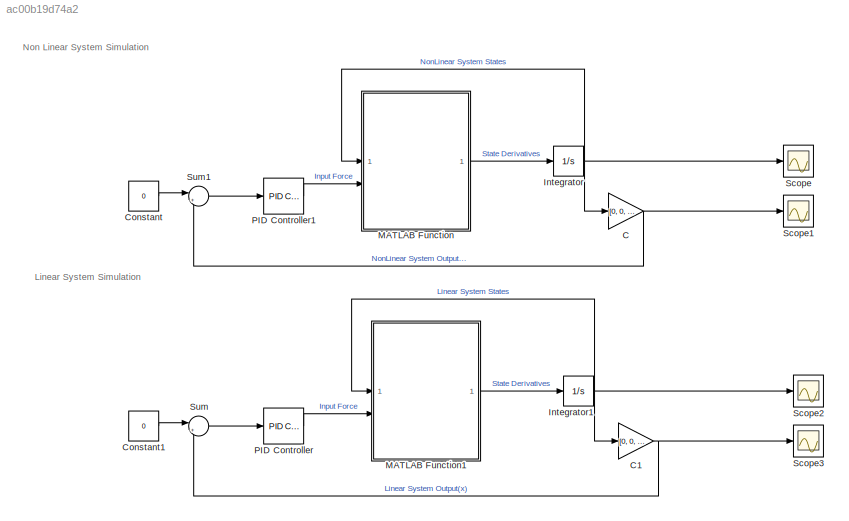
MODEL slx_ac00b19d74a2
KIND model
CONFIG AbsTol = auto
CONFIG EnableMultiTasking = off
CONFIG FixedStep = auto
CONFIG MaxStep = 0.001
CONFIG MinStep = auto
CONFIG RelTol = 1e-3
CONFIG SampleTimeConstraint = Unconstrained
CONFIG SolverName = VariableStepAuto
CONFIG StartTime = 0.0
CONFIG StopTime = 10
BLOCK [Gain] C
  Gain = [0, 0, 1, 0]
  Multiplication = Matrix(K*u)
BLOCK [Gain] C1
  Gain = [0, 0, 1, 0]
  Multiplication = Matrix(K*u)
BLOCK [Constant] Constant
  Value = 0
BLOCK [Constant] Constant1
  Value = 0
BLOCK [Integrator] Integrator
  InitialCondition = [0, 0, rand*0.1, 0]'
BLOCK [Integrator] Integrator1
  InitialCondition = [0, 0, rand*0.1, 0]'
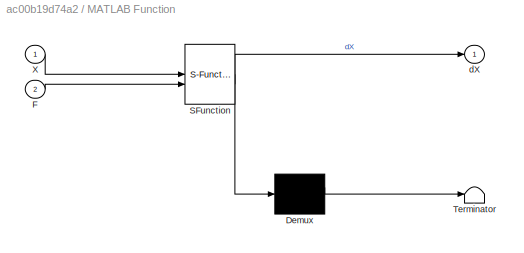
BLOCK [SubSystem] MATLAB Function
  ErrorFcn = Stateflow.Translate.translate
  PermitHierarchicalResolution = ExplicitOnly
  SFBlockType = MATLAB Function
  TreatAsAtomicUnit = on
BLOCK [Demux] MATLAB Function/ Demux 
  Outputs = 1
BLOCK [S-Function] MATLAB Function/ SFunction 
  EnableBusSupport = on
  FunctionName = sf_sfun
  PortCounts = [2 2]
  SFcnIsStateOwnerBlock = off
  SFunctionDeploymentMode = off
  Tag = Stateflow S-Function 2
BLOCK [Terminator] MATLAB Function/ Terminator 
BLOCK [Inport] MATLAB Function/F
  Port = 2
BLOCK [Inport] MATLAB Function/X
BLOCK [Outport] MATLAB Function/dX
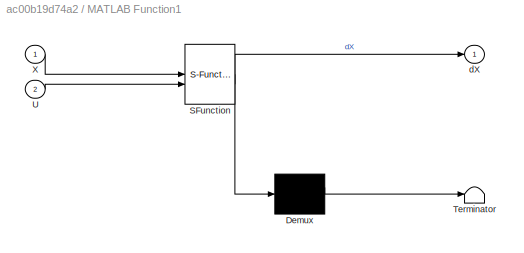
BLOCK [SubSystem] MATLAB Function1
  ErrorFcn = Stateflow.Translate.translate
  PermitHierarchicalResolution = ExplicitOnly
  SFBlockType = MATLAB Function
  TreatAsAtomicUnit = on
BLOCK [Demux] MATLAB Function1/ Demux 
  Outputs = 1
BLOCK [S-Function] MATLAB Function1/ SFunction 
  EnableBusSupport = on
  FunctionName = sf_sfun
  PortCounts = [2 2]
  SFcnIsStateOwnerBlock = off
  SFunctionDeploymentMode = off
  Tag = Stateflow S-Function 1
BLOCK [Terminator] MATLAB Function1/ Terminator 
BLOCK [Inport] MATLAB Function1/U
  Port = 2
BLOCK [Inport] MATLAB Function1/X
BLOCK [Outport] MATLAB Function1/dX
BLOCK [Reference] PID Controller  REF=slpidlib/PID Controller
  LibrarySourceBlock = simulink/Continuous/PID Controller
  SourceBlock = slpidlib/PID Controller
  SourceType = PID 1dof
BLOCK [Reference] PID Controller1  REF=slpidlib/PID Controller
  LibrarySourceBlock = simulink/Continuous/PID Controller
  SourceBlock = slpidlib/PID Controller
  SourceType = PID 1dof
BLOCK [Scope] Scope
  Floating = off
  NumInputPorts = 1
  ScopeSpecificationString = Simulink.scopes.TimeScopeBlockCfg('CurrentConfiguration', extmgr.ConfigurationSet(extmgr.Configuration('Core','General UI',true),extmgr.Configuration('Core','Source UI',true),extmgr.Configuration('Sources','WiredSimulink',true),extmgr.Configuration('Visuals','Time Domain',true,'SerializedDisplays',{struct('MinYLimReal','-18.01464','MaxYLimReal','17.91202','YLabelReal','','MinYLimMag','0.00000','Ma...<+1484ch>
BLOCK [Scope] Scope1
  Floating = off
  NumInputPorts = 1
  ScopeSpecificationString = Simulink.scopes.TimeScopeBlockCfg('CurrentConfiguration', extmgr.ConfigurationSet(extmgr.Configuration('Core','General UI',true),extmgr.Configuration('Core','Source UI',true),extmgr.Configuration('Sources','WiredSimulink',true,'DataLoggingVariableName','ScopeData1'),extmgr.Configuration('Visuals','Time Domain',true,'SerializedDisplays',{struct('MinYLimReal','-0.01811','MaxYLimReal','0.06629','YLab...<+1474ch>
BLOCK [Scope] Scope2
  Floating = off
  NumInputPorts = 1
  ScopeSpecificationString = Simulink.scopes.TimeScopeBlockCfg('CurrentConfiguration', extmgr.ConfigurationSet(extmgr.Configuration('Core','General UI',true),extmgr.Configuration('Core','Source UI',true),extmgr.Configuration('Sources','WiredSimulink',true,'DataLoggingVariableName','ScopeData1'),extmgr.Configuration('Visuals','Time Domain',true,'SerializedDisplays',{struct('MinYLimReal','-1.16454','MaxYLimReal','1.16454','YLab...<+1545ch>
BLOCK [Scope] Scope3
  Floating = off
  NumInputPorts = 1
  ScopeSpecificationString = Simulink.scopes.TimeScopeBlockCfg('CurrentConfiguration', extmgr.ConfigurationSet(extmgr.Configuration('Core','General UI',true),extmgr.Configuration('Core','Source UI',true),extmgr.Configuration('Sources','WiredSimulink',true,'DataLoggingVariableName','ScopeData2'),extmgr.Configuration('Visuals','Time Domain',true,'SerializedDisplays',{struct('MinYLimReal','-0.09821','MaxYLimReal','1.12114','YLab...<+1527ch>
BLOCK [Sum] Sum
  Inputs = |+-
BLOCK [Sum] Sum1
  Inputs = |+-
ANNOTATION (root): Linear System Simulation
ANNOTATION (root): Non Linear System Simulation
NET C1:1 -> Scope3:1, Sum:2
NET C:1 -> Scope1:1, Sum1:2
LINE Constant1:1 -> Sum:1
LINE Constant:1 -> Sum1:1
NET Integrator1:1 -> C1:1, MATLAB Function1:1, Scope2:1
NET Integrator:1 -> C:1, MATLAB Function:1, Scope:1
LINE MATLAB Function1:1 -> Integrator1:1
LINE MATLAB Function:1 -> Integrator:1
LINE PID Controller1:1 -> MATLAB Function:2
LINE PID Controller:1 -> MATLAB Function1:2
LINE Sum1:1 -> PID Controller1:1
LINE Sum:1 -> PID Controller:1
note: NET lines group one-source signal fan-out (src -> all destinations, sorted); 1:1 wires keep LINE
CHART MATLAB Function states=1 transitions=1
  STATE_LABEL 'eML_blk_kernel()'
  STATE_LABEL 'SCRIPT:\nfunction dX = NonLinearODE(X, F)\n    \n    % State Unpack\n    x = X(1);\n    dx = X(2);\n    Theta = X(3);\n    dTheta = X(4);\n\n    % System Properties\n    mp = 0.5;\n    mc = 2;\n    L  = 0.2;\n    g = 9.81;\n    \n    % X\n    f1 = (-mp*g*cos(Theta)*sin(Theta) + mp*L*sin(Theta)*dTheta^2) / (mc + mp*sin(Theta)^2);\n    g1 = 1 / (mc + mp*sin(Theta)^2);\n\n    % Theta\n    f2 = ((mp + mc)*g*sin(Theta)-mp...<+227ch>'
CHART MATLAB Function1 states=1 transitions=1
  STATE_LABEL 'eML_blk_kernel()'
  STATE_LABEL 'SCRIPT:\nfunction dX = LinearODE(X, U)\n    \n    A = [0    1.0000         0         0\n         0         0  -39.2400         0\n         0         0         0    1.0000\n         0         0 -245.2500         0];\n    B = [0\n         2\n         0\n       -10];\n\n    dX = zeros(4, 1);\n    dX = A * X + B * U;\nend'
CHART  states=0 transitions=0
CHART  states=0 transitions=0
